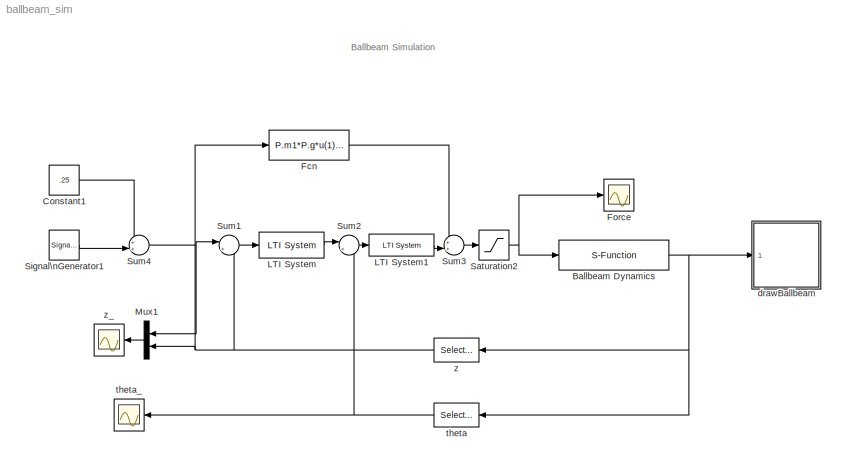
MODEL ballbeam_sim
KIND model
BLOCK [S-Function] Ballbeam Dynamics
  EnableBusSupport = off
  FunctionName = ballbeam_dynamics
  Parameters = AP
  Ports = [1, 1]
  SID = 11
BLOCK [Constant] Constant1
  SID = 63
  Value = .25
BLOCK [Fcn] Fcn
  Expr = P.m1*P.g*u(1)/P.L+P.m2*P.g/2;
  SID = 61
BLOCK [Scope] Force
  DataFormat = StructureWithTime
  Floating = off
  LimitDataPoints = off
  NumInputPorts = 1
  Ports = [1]
  SID = 21
  SampleTime = 0
  ShowLegends = off
  TimeRange = 100
  YMax = 12.25
  YMin = 9
BLOCK [Reference] LTI System  REF=cstblocks/LTI System
  IC = []
  Ports = [1, 1]
  SID = 56
  SourceBlock = cstblocks/LTI System
  SourceType = LTI Block
  sys = c_outer
BLOCK [Reference] LTI System1  REF=cstblocks/LTI System
  IC = []
  Ports = [1, 1]
  SID = 57
  SourceBlock = cstblocks/LTI System
  SourceType = LTI Block
  sys = c_inner
BLOCK [Mux] Mux1
  DisplayOption = bar
  Inputs = 2
  Ports = [2, 1]
  SID = 24
BLOCK [Saturate] Saturation2
  InputPortMap = u0
  LowerLimit = -AP.F_max
  Ports = [1, 1]
  SID = 37
  UpperLimit = AP.F_max
BLOCK [SignalGenerator] Signal\nGenerator1
  Amplitude = .125
  Frequency = .02
  Ports = [0, 1]
  SID = 64
  WaveForm = square
BLOCK [Sum] Sum1
  IconShape = round
  InputSameDT = off
  Inputs = |+-
  OutDataTypeStr = Inherit: Inherit via internal rule
  Ports = [2, 1]
  SID = 58
  SaturateOnIntegerOverflow = off
BLOCK [Sum] Sum2
  IconShape = round
  InputSameDT = off
  Inputs = |+-
  OutDataTypeStr = Inherit: Inherit via internal rule
  Ports = [2, 1]
  SID = 59
  SaturateOnIntegerOverflow = off
BLOCK [Sum] Sum3
  IconShape = round
  InputSameDT = off
  Inputs = ++|
  OutDataTypeStr = Inherit: Inherit via internal rule
  Ports = [2, 1]
  SID = 62
  SaturateOnIntegerOverflow = off
BLOCK [Sum] Sum4
  IconShape = round
  InputSameDT = off
  Inputs = ++|
  OutDataTypeStr = Inherit: Inherit via internal rule
  Ports = [2, 1]
  SID = 68
  SaturateOnIntegerOverflow = off
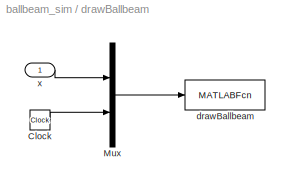
BLOCK [SubSystem] drawBallbeam
  Ports = [1]
  RequestExecContextInheritance = off
  SID = 4
BLOCK [Clock] drawBallbeam/Clock
  SID = 6
BLOCK [Mux] drawBallbeam/Mux
  DisplayOption = bar
  Inputs = 2
  Ports = [2, 1]
  SID = 7
BLOCK [MATLABFcn] drawBallbeam/drawBallbeam
  MATLABFcn = drawBallBeam(u,L,R)
  OutputDimensions = 0
  Ports = [1]
  SID = 8
  SampleTime = 0.01
BLOCK [Inport] drawBallbeam/x
  IconDisplay = Port number
  SID = 5
BLOCK [Selector] theta
  Indices = [1]
  InputPortWidth = 2
  Ports = [1, 1]
  SID = 46
BLOCK [Scope] theta_
  DataFormat = StructureWithTime
  Floating = off
  LimitDataPoints = off
  NumInputPorts = 1
  Ports = [1]
  SID = 23
  SampleTime = 0
  SaveName = ScopeData1
  ShowLegends = off
  TimeRange = 100
  YMax = -2e-08
  YMin = -1.2e-07
BLOCK [Selector] z
  Indices = [2]
  InputPortWidth = 2
  Ports = [1, 1]
  SID = 45
BLOCK [Scope] z_
  DataFormat = StructureWithTime
  Floating = off
  LimitDataPoints = off
  NumInputPorts = 1
  Ports = [1]
  SID = 25
  SampleTime = 0
  SaveName = ScopeData2
  ShowLegends = off
  TimeRange = 100
  YMax = 0.425
  YMin = 0.05
ANNOTATION (root): Ballbeam Simulation
NET Ballbeam Dynamics:1 -> drawBallbeam:1, theta:1, z:1
LINE Constant1:1 -> Sum4:1
LINE Fcn:1 -> Sum3:1
LINE LTI System1:1 -> Sum3:2
LINE LTI System:1 -> Sum2:1
LINE Mux1:1 -> z_:1
NET Saturation2:1 -> Ballbeam Dynamics:1, Force:1
LINE Signal\nGenerator1:1 -> Sum4:2
LINE Sum1:1 -> LTI System:1
LINE Sum2:1 -> LTI System1:1
LINE Sum3:1 -> Saturation2:1
NET Sum4:1 -> Mux1:1, Sum1:1
LINE drawBallbeam/Clock:1 -> drawBallbeam/Mux:2
LINE drawBallbeam/Mux:1 -> drawBallbeam/drawBallbeam:1
LINE drawBallbeam/x:1 -> drawBallbeam/Mux:1
NET theta:1 -> Sum2:2, theta_:1
NET z:1 -> Fcn:1, Mux1:2, Sum1:2
note: NET lines group one-source signal fan-out (src -> all destinations, sorted); 1:1 wires keep LINE
